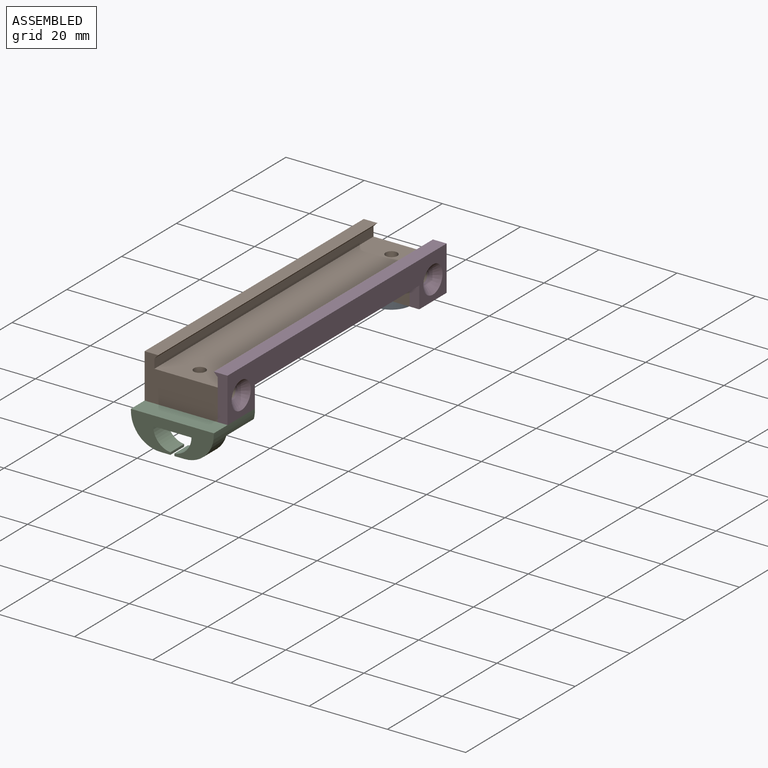
[diagram: assembled view]
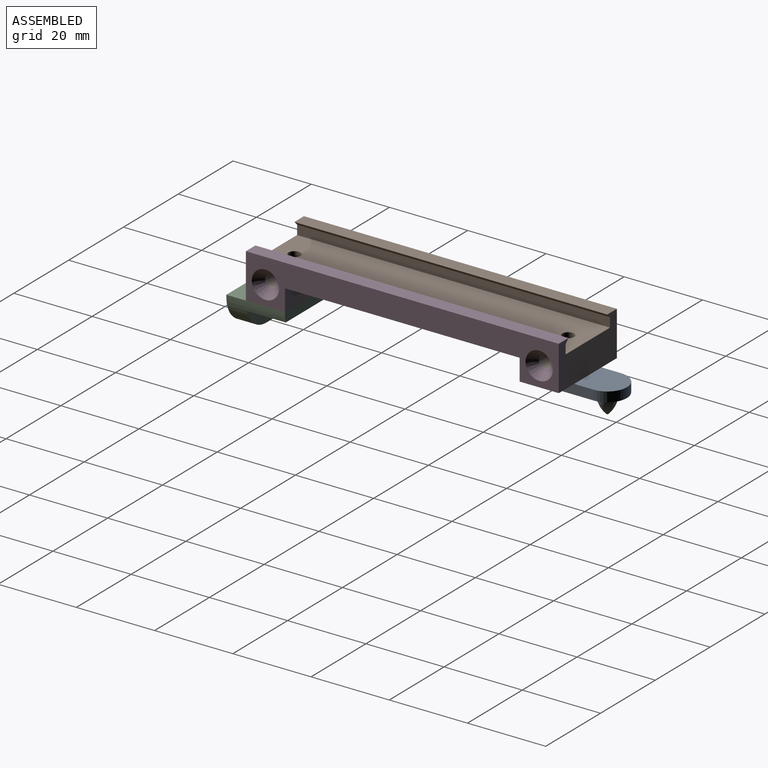
[diagram: assembled view, second angle]
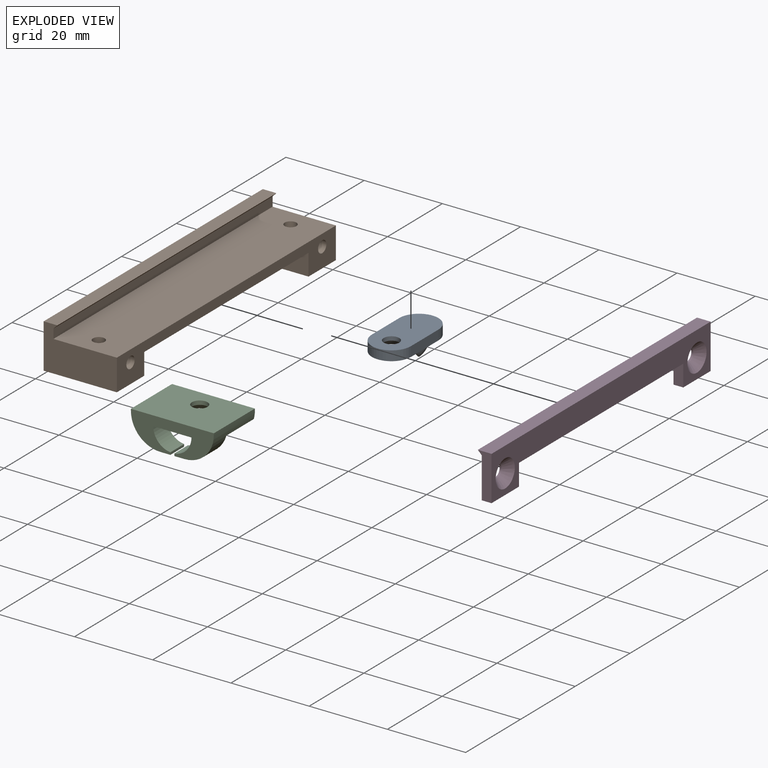
[diagram: exploded view]
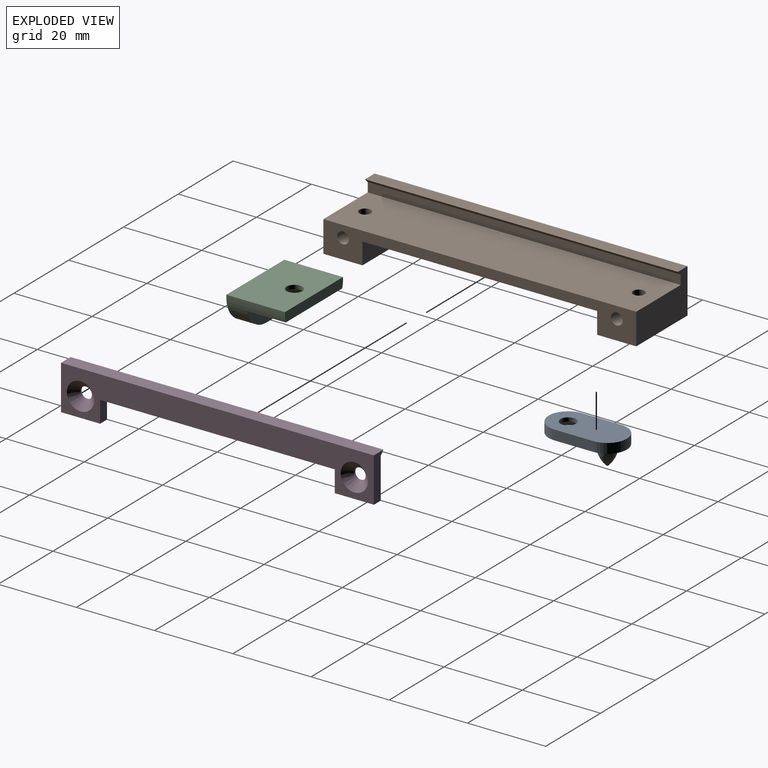
[diagram: exploded view, second angle]
ASSEMBLY  parts=4 mates=3
PART A: 12 faces, bbox 10x20x7.5 mm
  f0: plane 10x2.5mm, normal (1,0,0), area 25mm2, adj f2,f3,f5,f10
  f1: plane 10x2.5mm, normal (-1,0,0), area 25mm2, adj f2,f3,f5,f10
  f2: plane 20x10mm, normal (0,0,-1), area 104.1mm2, adj f0,f1,f4,f5,f9,f10
  f3: plane 20x10mm, normal (0,0,1), area 166mm2, adj f0,f1,f5,f10,f11
  f4: cone r=1.5mm half-angle=45deg, axis (0,0,-1), area 36.7mm2, adj f2,f11
  f5: cylinder r=5mm len=10mm, axis (0,0,1), area 39.3mm2, adj f0,f1,f2,f3
  f6: plane 0.4x0.4mm, normal (0,0,-1), area 0.1mm2, adj f7
  f7: cone r=0.2mm half-angle=45deg, axis (0,0,1), area 0.2mm2, adj f6,f8
  f8: revolved ~4.79x4.79mm, area 91.1mm2, adj f7,f9
  f9: torus R=3.38mm, axis (0,0,-1), area 24.6mm2, adj f2,f8
  f10: cylinder r=5mm len=10mm, axis (0,0,-1), area 39.3mm2, adj f0,f1,f2,f3
  f11: cylinder r=2mm len=4mm, axis (0,0,-1), area 12.6mm2, adj f3,f4
PART B: 17 faces, bbox 18.7x80x11.4 mm
  f0: plane 60x18.7mm, normal (0,0,-1), area 1122mm2, adj f4,f5,f10,f12
  f1: plane 80x2.4mm, normal (1,0,0), area 192mm2, adj f2,f6,f7,f8
  f2: plane 80x1mm, normal (0.71,0,-0.71), area 113.1mm2, adj f1,f3,f7,f8
  f3: plane 80x3.5mm, normal (0,0,1), area 280mm2, adj f2,f4,f7,f8
  f4: plane 80x11.4mm, normal (-1,0,0), area 582mm2, adj f0,f3,f7,f8,f9,f10,f11,f12
  f5: plane 80x8mm, normal (1,0,0), area 295.9mm2, adj f0,f6,f7,f8,f9,f10,f11,f12
  f6: plane 80x16.2mm, normal (0,0,1), area 1281.9mm2, adj f1,f5,f7,f8,f15,f16
  f7: plane 18.7x11.4mm, normal (0,1,0), area 158.6mm2, adj f1,f2,f3,f4,f5,f6,f9
  f8: plane 18.7x11.4mm, normal (0,-1,0), area 158.6mm2, adj f1,f2,f3,f4,f5,f6,f11
  f9: plane 18.7x10mm, normal (0,0,-1), area 179.9mm2, adj f4,f5,f7,f10,f15
  f10: plane 18.7x5.5mm, normal (0,-1,0), area 102.9mm2, adj f0,f4,f5,f9
  f11: plane 18.7x10mm, normal (0,0,-1), area 179.9mm2, adj f4,f5,f8,f12,f16
  f12: plane 18.7x5.5mm, normal (0,1,0), area 102.9mm2, adj f0,f4,f5,f11
  f13: cylinder r=1.5mm len=8mm, axis (1,0,0), area 67.3mm2, adj f5,f16
  f14: cylinder r=1.5mm len=8mm, axis (1,0,0), area 67.3mm2, adj f5,f15
  f15: cylinder r=1.5mm len=8mm, axis (0,0,-1), area 66.4mm2, adj f6,f9,f14
  f16: cylinder r=1.5mm len=8mm, axis (0,0,-1), area 66.4mm2, adj f6,f11,f13
PART C: 18 faces, bbox 21.2x15x8 mm
  f0: plane 5x2.6mm, normal (0,0,-1), area 13mm2, adj f2,f6,f14,f17
  f1: cylinder r=4.88mm len=5mm, axis (0,-1,0), area 35.9mm2, adj f3,f6,f13,f16
  f2: plane 9.81x5.45mm, normal (0,1,0), area 26.9mm2, adj f0,f3,f12,f14,f17
  f3: plane 20.63x15mm, normal (0,0,-1), area 216.7mm2, adj f1,f2,f4,f6,f9,f12,f13,f14
  f4: plane 21.2x2.5mm, normal (0,1,0), area 52.6mm2, adj f3,f5,f7,f8,f14,f15
  f5: plane 15x0.45mm, normal (1,0,0), area 6.7mm2, adj f4,f6,f8,f14
  f6: plane 21.2x7.95mm, normal (0,-1,0), area 106.3mm2, adj f0,f1,f3,f5,f7,f8,f11,f12
  f7: plane 15x0.45mm, normal (-1,0,0), area 6.7mm2, adj f4,f6,f8,f15
  f8: plane 21.2x15mm, normal (0,0,1), area 305.4mm2, adj f4,f5,f6,f7,f10
  f9: cone r=1.5mm half-angle=45deg, axis (0,0,-1), area 36.7mm2, adj f3,f10
  f10: cylinder r=2mm len=4mm, axis (0,0,-1), area 12.6mm2, adj f8,f9
  f11: plane 5x2.6mm, normal (0,0,-1), area 13mm2, adj f6,f13,f15,f16
  f12: cylinder r=4.88mm len=5mm, axis (0,-1,0), area 35.9mm2, adj f2,f3,f6,f17
  f13: plane 9.81x5.45mm, normal (0,1,0), area 26.9mm2, adj f1,f3,f11,f15,f16
  f14: cylinder r=7.5mm len=15mm, axis (0,-1,0), area 79.7mm2, adj f0,f2,f3,f4,f5,f6
  f15: cylinder r=7.5mm len=15mm, axis (0,1,0), area 79.7mm2, adj f3,f4,f6,f7,f11,f13
  f16: plane 5x0.59mm, normal (1,0,0), area 3mm2, adj f1,f6,f11,f13
  f17: plane 5x0.59mm, normal (-1,0,0), area 3mm2, adj f0,f2,f6,f12
PART D: 15 faces, bbox 3.5x80x11.4 mm
  f0: plane 10x2.5mm, normal (0,0,-1), area 25mm2, adj f3,f4,f5,f14
  f1: plane 80x3.5mm, normal (0,0,1), area 280mm2, adj f2,f4,f5,f6
  f2: plane 80x1mm, normal (-0.71,0,-0.71), area 113.1mm2, adj f1,f3,f5,f6
  f3: plane 80x10.4mm, normal (-1,0,0), area 487.9mm2, adj f0,f2,f5,f6,f7,f8,f9,f12
  f4: plane 80x11.4mm, normal (1,0,0), area 505mm2, adj f0,f1,f5,f6,f7,f10,f11,f12
  f5: plane 11.4x3.5mm, normal (0,1,0), area 29mm2, adj f0,f1,f2,f3,f4
  f6: plane 11.4x3.5mm, normal (0,-1,0), area 29mm2, adj f1,f2,f3,f4,f7
  f7: plane 10x2.5mm, normal (0,0,-1), area 25mm2, adj f3,f4,f6,f12
  f8: cylinder r=1.5mm len=3mm, axis (1,0,0), area 4.7mm2, adj f3,f10
  f9: cylinder r=1.5mm len=3mm, axis (1,0,0), area 4.7mm2, adj f3,f11
  f10: cone r=1.5mm half-angle=45deg, axis (1,0,0), area 44.4mm2, adj f4,f8
  f11: cone r=1.5mm half-angle=45deg, axis (1,0,0), area 44.4mm2, adj f4,f9
  f12: plane 5.5x2.5mm, normal (0,1,0), area 13.8mm2, adj f3,f4,f7,f13
  f13: plane 60x2.5mm, normal (0,0,-1), area 150mm2, adj f3,f4,f12,f14
  f14: plane 5.5x2.5mm, normal (0,-1,0), area 13.8mm2, adj f0,f3,f4,f13
PLACE A t=(-6.7,-32.42,13.92)mm
PLACE B t=(-6.7,-32.42,13.92)mm fixed
PLACE C t=(-6.7,-32.42,13.92)mm
PLACE D t=(-6.9,-32.42,13.92)mm
MATE fastened A.f4 <-> B.f15  axis (0,0,1) through (1.2,42.58,5.72)mm
MATE fastened B.f14 <-> D.f9  axis (1,0,0) through (9.3,42.58,10.72)mm
MATE fastened C.f9 <-> B.f16  axis (0,0,1) through (1.2,-27.42,5.72)mm
